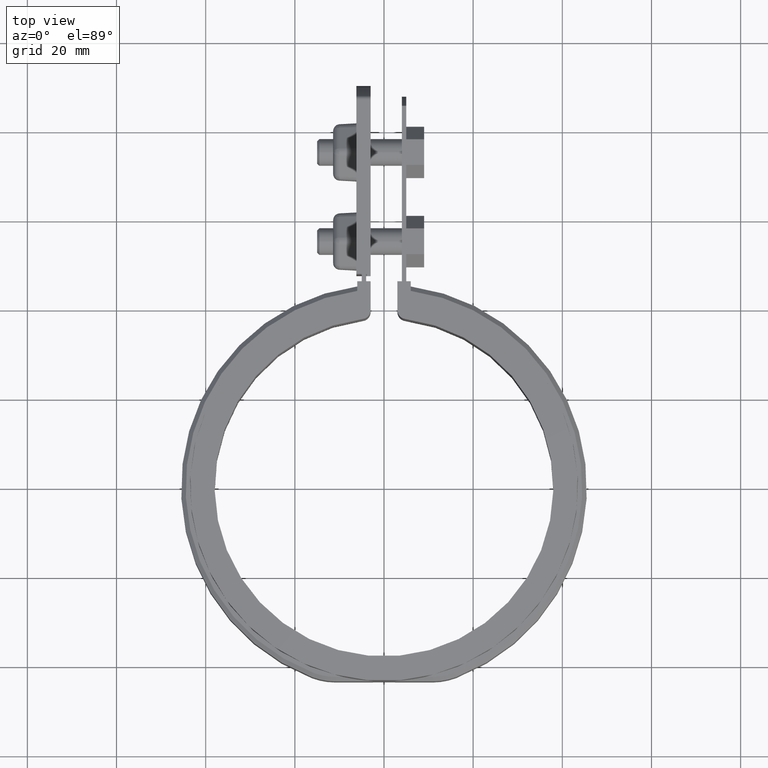
[diagram: clean part render]
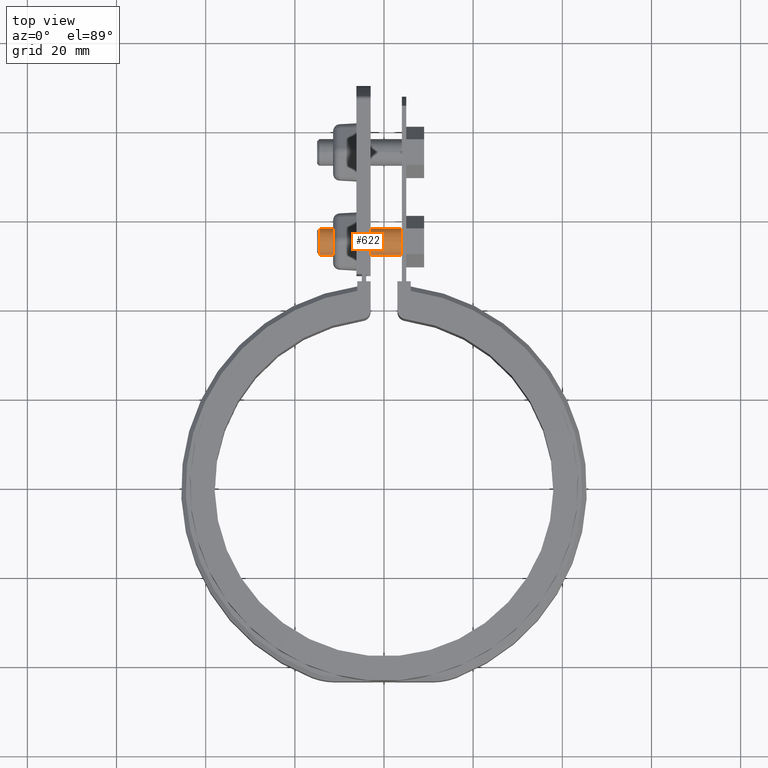
[diagram: same view with one face highlighted and labeled with its STEP entity id]
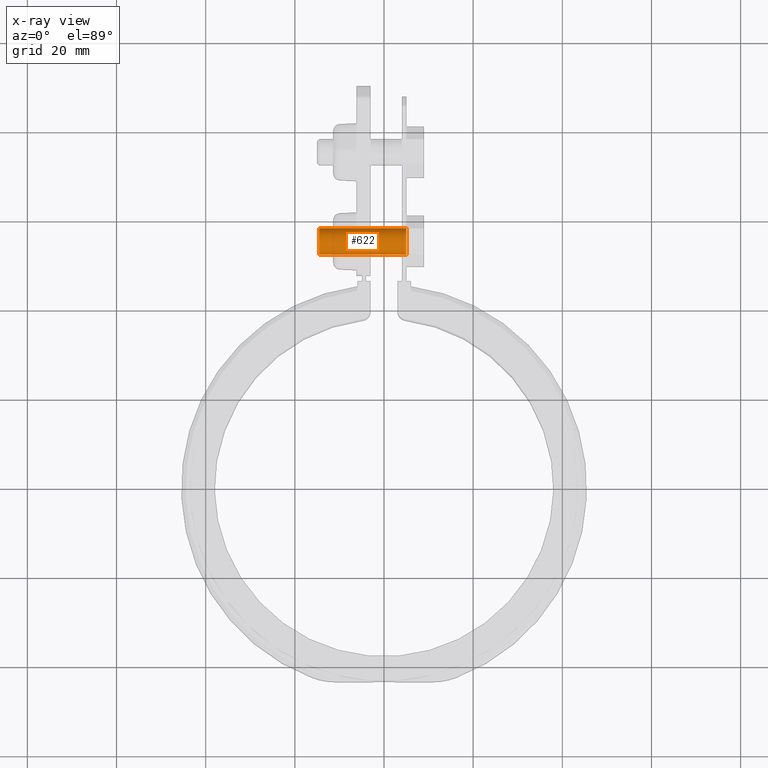
[diagram: x-ray of the same camera — body ghosted, the highlighted face saturated]
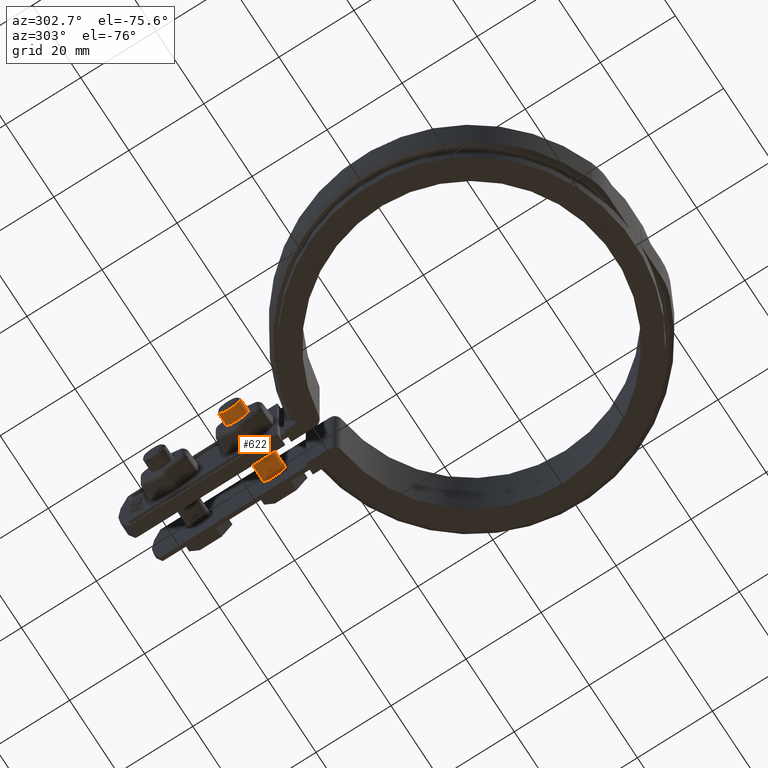
[diagram: same view with one face highlighted and labeled with its STEP entity id]
A machine part, top view. The second image highlights one B-rep face of the part: STEP entity #622.
The next image is the same camera in x-ray: the body ghosted, the highlighted face saturated — about 0% of this face is hidden behind the body in this view.
A second angle (auxiliary view) of the same face is appended — the face is thin or edge-on in the first view.
In plain terms, the highlighted cylindrical surface (bore or boss wall) has radius 3 mm, axis along (-1, -0, -0).
Its self-contained STEP definition (entity closure, byte-faithful):
#622 = ADVANCED_FACE( '', ( #1178, #1179 ), #1180, .T. );
#1178 = FACE_OUTER_BOUND( '', #2517, .T. );
#1179 = FACE_OUTER_BOUND( '', #2518, .T. );
#1180 = CYLINDRICAL_SURFACE( '', #2519, 3.00000000000000 );
#2517 = EDGE_LOOP( '', ( #5838 ) );
#2518 = EDGE_LOOP( '', ( #5839 ) );
#2519 = AXIS2_PLACEMENT_3D( '', #5840, #5841, #5842 );
#5838 = ORIENTED_EDGE( '', *, *, #7967, .F. );
#5839 = ORIENTED_EDGE( '', *, *, #7968, .T. );
#5840 = CARTESIAN_POINT( '', ( 13.4487843911358, 55.3039798987517, -1.73472347597681E-015 ) );
#5841 = DIRECTION( '', ( -1.00000000000000, -2.67276471009220E-051, -5.34552942018440E-051 ) );
#5842 = DIRECTION( '', ( -5.34552942018440E-051, 0.000000000000000, 1.00000000000000 ) );
#7967 = EDGE_CURVE( '', #9284, #9284, #9285, .T. );
#7968 = EDGE_CURVE( '', #9286, #9286, #9287, .T. );
#9284 = VERTEX_POINT( '', #13149 );
#9285 = CIRCLE( '', #13150, 3.00000000000000 );
#9286 = VERTEX_POINT( '', #13151 );
#9287 = CIRCLE( '', #13152, 3.00000000000000 );
#13149 = CARTESIAN_POINT( '', ( 5.00000000000002, 55.3039798987517, 3.00000000000000 ) );
#13150 = AXIS2_PLACEMENT_3D( '', #14990, #14991, #14992 );
#13151 = CARTESIAN_POINT( '', ( -14.5000000000000, 55.3039798987517, -3.00000000000001 ) );
#13152 = AXIS2_PLACEMENT_3D( '', #14993, #14994, #14995 );
#14990 = CARTESIAN_POINT( '', ( 5.00000000000002, 55.3039798987517, -1.73472347597681E-015 ) );
#14991 = DIRECTION( '', ( 1.00000000000000, 2.67276471009220E-051, 5.34552942018440E-051 ) );
#14992 = DIRECTION( '', ( -5.34552942018440E-051, 0.000000000000000, 1.00000000000000 ) );
#14993 = CARTESIAN_POINT( '', ( -14.5000000000000, 55.3039798987517, -1.73472347597681E-015 ) );
#14994 = DIRECTION( '', ( 1.00000000000000, 2.67276471009220E-051, 5.34552942018440E-051 ) );
#14995 = DIRECTION( '', ( 5.34552942018440E-051, 0.000000000000000, -1.00000000000000 ) );